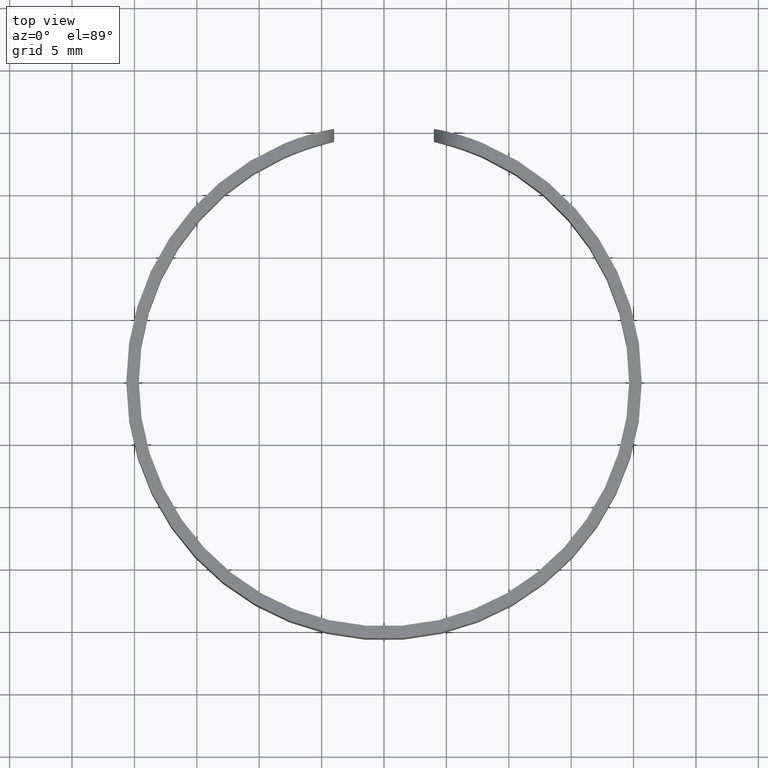
[diagram: clean part render]
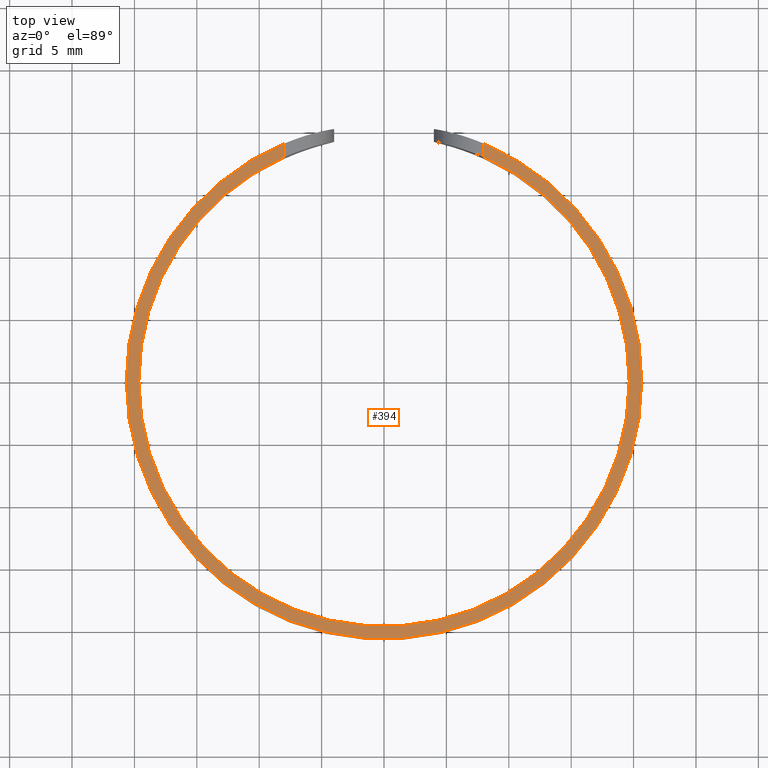
[diagram: same view with one face highlighted and labeled with its STEP entity id]
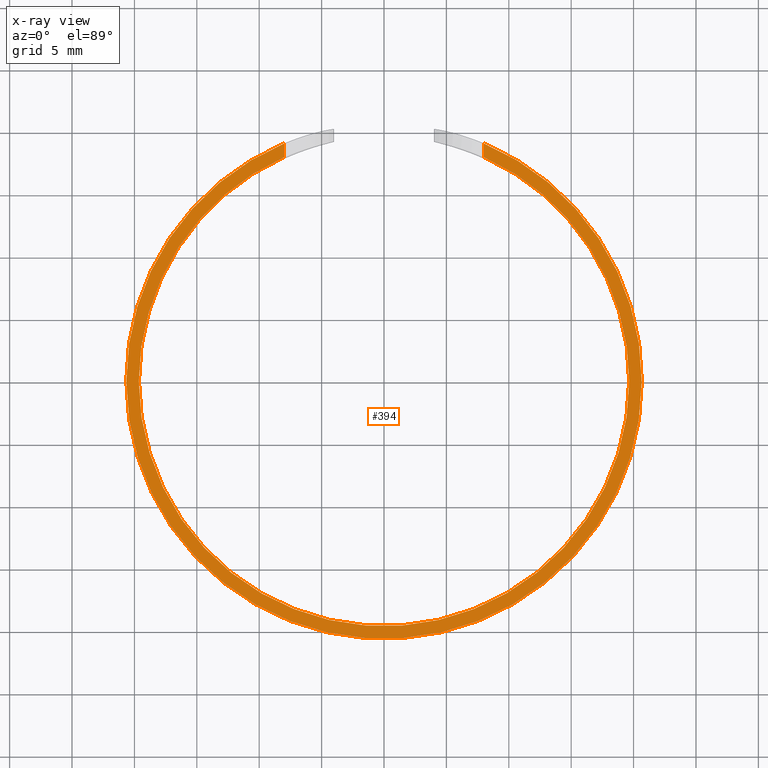
[diagram: x-ray of the same camera — body ghosted, the highlighted face saturated]
A machine part, top view. The second image highlights one B-rep face of the part: STEP entity #394.
The next image is the same camera in x-ray: the body ghosted, the highlighted face saturated — about 0% of this face is hidden behind the body in this view.
In plain terms, the highlighted planar face has unit normal (0, 0, 1).
Its self-contained STEP definition (entity closure, byte-faithful):
#7 = AXIS2_PLACEMENT_3D ( 'NONE', #92, #247, #401 ) ;
#18 = CIRCLE ( 'NONE', #266, 19.65000000000000200 ) ;
#57 = FACE_OUTER_BOUND ( 'NONE', #89, .T. ) ;
#61 = DIRECTION ( 'NONE',  ( 0.0000000000000000000, -1.000000000000000000, 0.0000000000000000000 ) ) ;
#62 = DIRECTION ( 'NONE',  ( -0.0000000000000000000, -0.0000000000000000000, -1.000000000000000000 ) ) ;
#66 = ORIENTED_EDGE ( 'NONE', *, *, #333, .T. ) ;
#78 = CIRCLE ( 'NONE', #575, 20.64999999999999900 ) ;
#80 = DIRECTION ( 'NONE',  ( 4.250444316547424500E-015, 1.000000000000000000, -0.0000000000000000000 ) ) ;
#89 = EDGE_LOOP ( 'NONE', ( #410, #66, #471, #517, #425, #629, #123, #565 ) ) ;
#90 = CARTESIAN_POINT ( 'NONE',  ( -19.65000000000000200, 0.0000000000000000000, 7.799999999999999800 ) ) ;
#92 = CARTESIAN_POINT ( 'NONE',  ( 0.0000000000000000000, 0.0000000000000000000, 7.799999999999999800 ) ) ;
#105 = CIRCLE ( 'NONE', #7, 19.65000000000000200 ) ;
#111 = DIRECTION ( 'NONE',  ( -0.0000000000000000000, -0.0000000000000000000, -1.000000000000000000 ) ) ;
#118 = CARTESIAN_POINT ( 'NONE',  ( -8.000000000000005300, 19.03739740615822400, 7.799999999999999800 ) ) ;
#123 = ORIENTED_EDGE ( 'NONE', *, *, #225, .T. ) ;
#131 = CARTESIAN_POINT ( 'NONE',  ( 0.0000000000000000000, 0.0000000000000000000, 7.799999999999999800 ) ) ;
#176 = DIRECTION ( 'NONE',  ( 1.000000000000000000, 0.0000000000000000000, 0.0000000000000000000 ) ) ;
#222 = VERTEX_POINT ( 'NONE', #118 ) ;
#225 = EDGE_CURVE ( 'NONE', #563, #558, #18, .T. ) ;
#247 = DIRECTION ( 'NONE',  ( -0.0000000000000000000, -0.0000000000000000000, -1.000000000000000000 ) ) ;
#260 = EDGE_CURVE ( 'NONE', #638, #571, #591, .T. ) ;
#263 = EDGE_CURVE ( 'NONE', #621, #563, #505, .T. ) ;
#266 = AXIS2_PLACEMENT_3D ( 'NONE', #321, #111, #317 ) ;
#268 = CARTESIAN_POINT ( 'NONE',  ( 0.0000000000000000000, 0.0000000000000000000, 7.799999999999999800 ) ) ;
#283 = CARTESIAN_POINT ( 'NONE',  ( 20.64999999999999900, 2.528895640239284100E-015, 7.799999999999999800 ) ) ;
#288 = CARTESIAN_POINT ( 'NONE',  ( 19.65000000000000200, 2.406430960324549000E-015, 7.799999999999999800 ) ) ;
#317 = DIRECTION ( 'NONE',  ( 1.000000000000000000, 0.0000000000000000000, 0.0000000000000000000 ) ) ;
#321 = CARTESIAN_POINT ( 'NONE',  ( 0.0000000000000000000, 0.0000000000000000000, 7.799999999999999800 ) ) ;
#324 = DIRECTION ( 'NONE',  ( 1.000000000000000000, 0.0000000000000000000, 0.0000000000000000000 ) ) ;
#327 = CARTESIAN_POINT ( 'NONE',  ( 0.0000000000000000000, 0.0000000000000000000, 7.799999999999999800 ) ) ;
#328 = EDGE_CURVE ( 'NONE', #222, #549, #460, .T. ) ;
#329 = CIRCLE ( 'NONE', #472, 20.64999999999999900 ) ;
#333 = EDGE_CURVE ( 'NONE', #549, #482, #78, .T. ) ;
#334 = DIRECTION ( 'NONE',  ( 0.0000000000000000000, 0.0000000000000000000, 1.000000000000000000 ) ) ;
#341 = CARTESIAN_POINT ( 'NONE',  ( -8.000000000000000000, 20.25888693882269100, 7.799999999999999800 ) ) ;
#360 = EDGE_CURVE ( 'NONE', #482, #638, #329, .T. ) ;
#390 = AXIS2_PLACEMENT_3D ( 'NONE', #327, #334, #519 ) ;
#391 = CARTESIAN_POINT ( 'NONE',  ( -20.64999999999999900, 0.0000000000000000000, 7.799999999999999800 ) ) ;
#394 = ADVANCED_FACE ( 'NONE', ( #57 ), #520, .T. ) ;
#401 = DIRECTION ( 'NONE',  ( 1.000000000000000000, 0.0000000000000000000, 0.0000000000000000000 ) ) ;
#408 = VECTOR ( 'NONE', #61, 1000.000000000000000 ) ;
#410 = ORIENTED_EDGE ( 'NONE', *, *, #328, .T. ) ;
#421 = CARTESIAN_POINT ( 'NONE',  ( 0.0000000000000000000, 0.0000000000000000000, 7.799999999999999800 ) ) ;
#425 = ORIENTED_EDGE ( 'NONE', *, *, #640, .T. ) ;
#460 = CIRCLE ( 'NONE', #607, 20.64999999999999900 ) ;
#463 = DIRECTION ( 'NONE',  ( 1.000000000000000000, 0.0000000000000000000, 0.0000000000000000000 ) ) ;
#471 = ORIENTED_EDGE ( 'NONE', *, *, #360, .T. ) ;
#472 = AXIS2_PLACEMENT_3D ( 'NONE', #131, #574, #176 ) ;
#474 = DIRECTION ( 'NONE',  ( 0.0000000000000000000, 0.0000000000000000000, 1.000000000000000000 ) ) ;
#482 = VERTEX_POINT ( 'NONE', #283 ) ;
#484 = CARTESIAN_POINT ( 'NONE',  ( -8.000000000000010700, 17.94777144940284700, 7.799999999999999800 ) ) ;
#490 = CARTESIAN_POINT ( 'NONE',  ( 7.999999999999998200, 17.94777144940285000, 7.799999999999999800 ) ) ;
#495 = VECTOR ( 'NONE', #80, 1000.000000000000000 ) ;
#500 = AXIS2_PLACEMENT_3D ( 'NONE', #421, #62, #463 ) ;
#505 = CIRCLE ( 'NONE', #500, 19.65000000000000200 ) ;
#512 = DIRECTION ( 'NONE',  ( 1.000000000000000000, 0.0000000000000000000, 0.0000000000000000000 ) ) ;
#517 = ORIENTED_EDGE ( 'NONE', *, *, #260, .T. ) ;
#519 = DIRECTION ( 'NONE',  ( 1.000000000000000000, 0.0000000000000000000, -0.0000000000000000000 ) ) ;
#520 = PLANE ( 'NONE',  #390 ) ;
#535 = CARTESIAN_POINT ( 'NONE',  ( 7.999999999999998200, 19.03739740615822700, 7.799999999999999800 ) ) ;
#549 = VERTEX_POINT ( 'NONE', #391 ) ;
#558 = VERTEX_POINT ( 'NONE', #484 ) ;
#559 = CARTESIAN_POINT ( 'NONE',  ( 7.999999999999998200, 19.23856803402997400, 7.799999999999999800 ) ) ;
#560 = DIRECTION ( 'NONE',  ( 0.0000000000000000000, 0.0000000000000000000, 1.000000000000000000 ) ) ;
#563 = VERTEX_POINT ( 'NONE', #90 ) ;
#565 = ORIENTED_EDGE ( 'NONE', *, *, #599, .T. ) ;
#571 = VERTEX_POINT ( 'NONE', #490 ) ;
#574 = DIRECTION ( 'NONE',  ( 0.0000000000000000000, 0.0000000000000000000, 1.000000000000000000 ) ) ;
#575 = AXIS2_PLACEMENT_3D ( 'NONE', #614, #560, #512 ) ;
#591 = LINE ( 'NONE', #559, #408 ) ;
#599 = EDGE_CURVE ( 'NONE', #558, #222, #620, .T. ) ;
#607 = AXIS2_PLACEMENT_3D ( 'NONE', #268, #474, #324 ) ;
#614 = CARTESIAN_POINT ( 'NONE',  ( 0.0000000000000000000, 0.0000000000000000000, 7.799999999999999800 ) ) ;
#620 = LINE ( 'NONE', #341, #495 ) ;
#621 = VERTEX_POINT ( 'NONE', #288 ) ;
#629 = ORIENTED_EDGE ( 'NONE', *, *, #263, .T. ) ;
#638 = VERTEX_POINT ( 'NONE', #535 ) ;
#640 = EDGE_CURVE ( 'NONE', #571, #621, #105, .T. ) ;